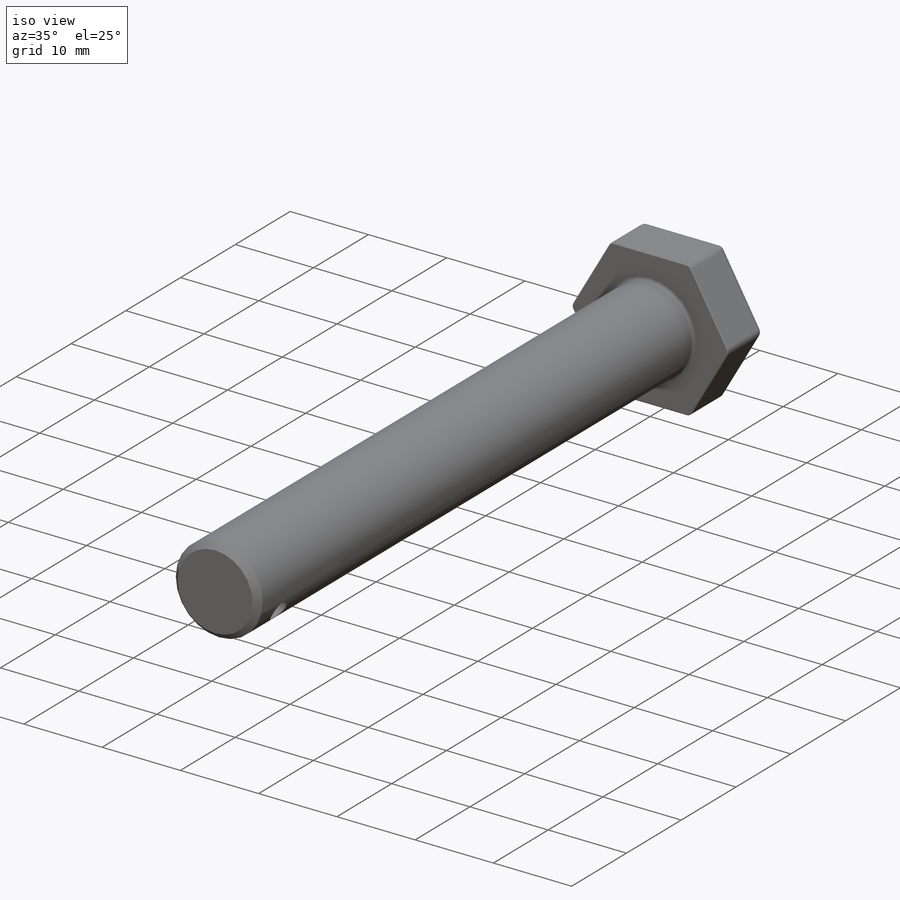
[diagram: iso view]
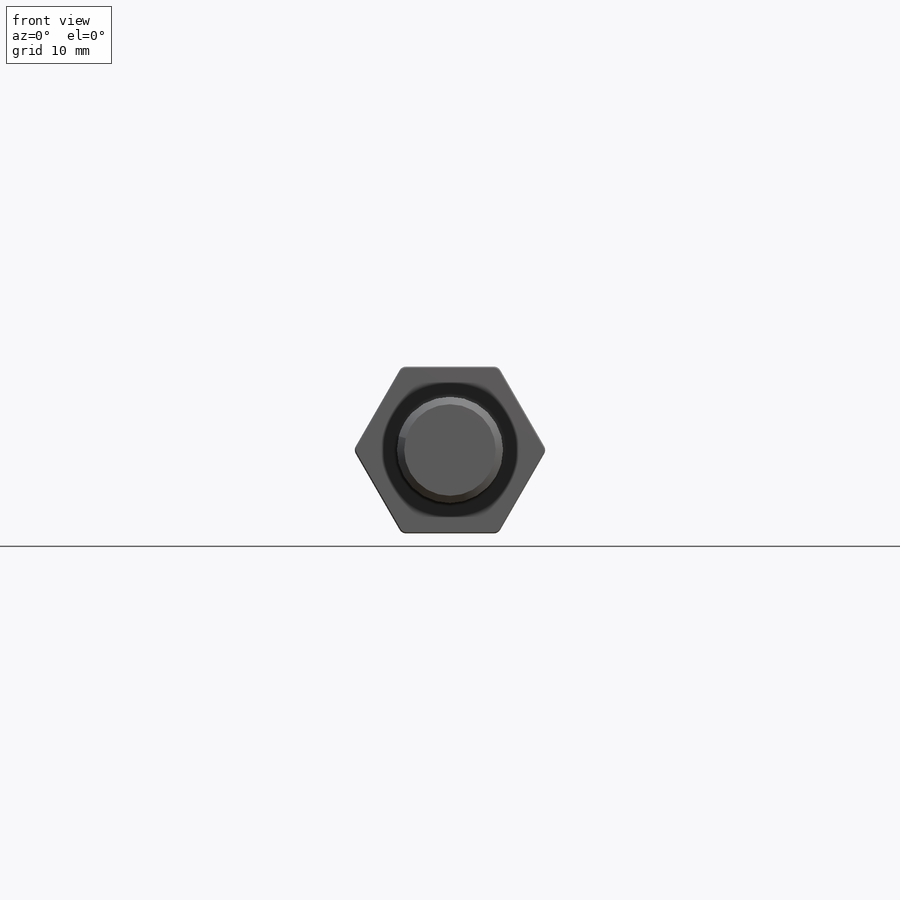
[diagram: front view]
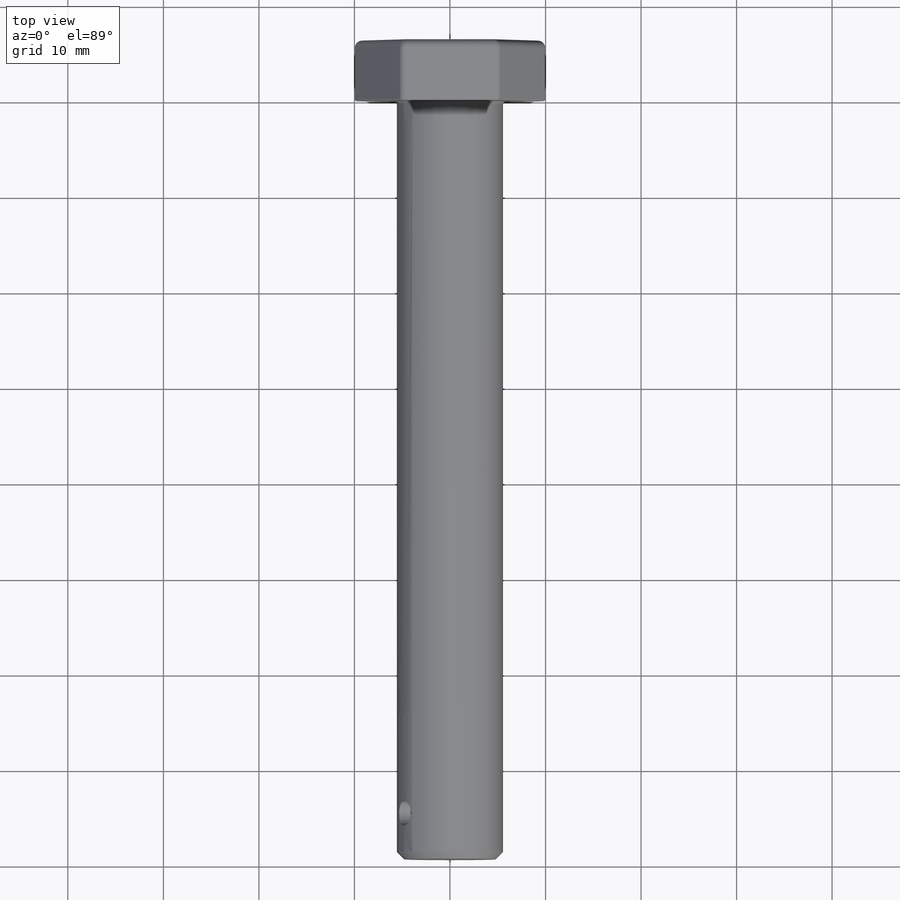
[diagram: top view]
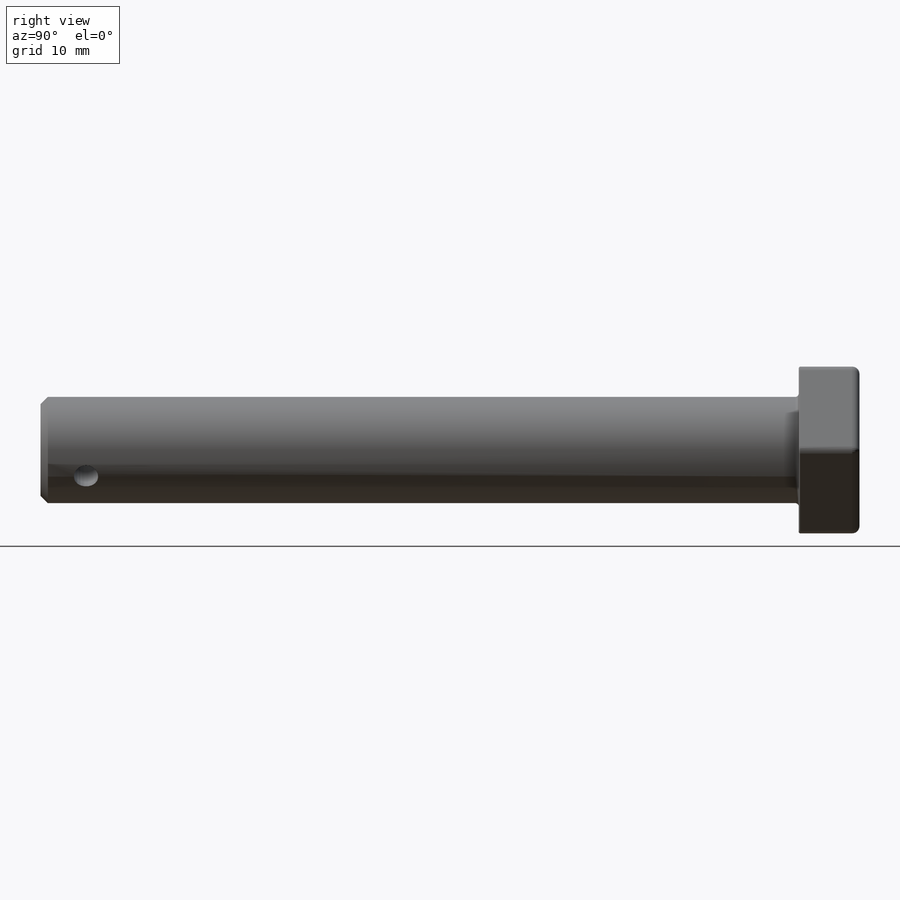
[diagram: right view]
SOLIDWORKS PART (.sldprt)
format: sldprt  version: not decoded by parser v0  size: 14,612,992 bytes
history: native  units: mm
features: sketch x4, plane x3, fillet x3, extrude x2, chamfer x2, material x1, thread x1, cut_extrude x1, hole x1 + 1 further entry (+8 scaffold rows collapsed)
feature tree (27):
  scaffold x8  (default folders/planes/origin — collapsed)
  material  "AISI 4340 Steel, normalized"
  plane  "Plane1"
  plane  "Plane2"
  plane  "Plane3"
  "Design Table"
  sketch  "Shank_Diameter"  dims[Diameter=11.1125mm]
  extrude  "Shank"  [1 undecoded]
  thread  "Thread"  Diameter=14.2875mm Length=14.2875mm Minor=9.5758mm  [1 undecoded]
  sketch  "Hex"  dims[c1.D1=0.762mm c1.D2=0.762mm c1.D3=0.762mm c1.D4=0.762mm c1.D5=0.762mm c2.D1=0.762mm c2.D2=11.1125mm c2.D3=11.1125mm c3.D2=11.1125mm c3.D3=11.1125mm c4.D2=60.0deg c4.D3=60.0deg c4.D4=~22.258794mm c4.D1=22.225mm c5.D2=120.0deg c5.D4=~22.219941mm c6.D2=~22.217016mm c6.D1=17.4625mm c6.Wrench_Size=17.4625mm c6.D4=~8.73125mm c6.D5=~8.73125mm c6.D6=~8.73125mm c6.D7=120.0deg c6.D8=120.0deg c6.D9=120.0deg c6.D10=120.0deg c6.D11=120.0deg c6.D12=~13.748153mm c6.D13=60.0deg]
  extrude  "Head"  Depth=6.35mm Thickness=6.35mm
  sketch  "Sketch1"  dims[D1=1.524mm D2=4.7625mm]
  cut_extrude  "Shank_Hole"  [1 undecoded]
  sketch  "Sketch2"  dims[D1=1.524mm]
  hole  "Head_Hole"  [1 undecoded]
  fillet  "Fillet1"  Radius=0.762mm
  fillet  "Fillet2"  Radius=0.762mm
  chamfer  "Chamfer1"  Distance=0.762mm Angle=45deg
  chamfer  "Chamfer2"  Distance=0.127mm Angle=45deg
  fillet  "Fillet4"  Radius=0.381mm
decode coverage: 11 of 14 modeling features carry decoded parameters; 1 rows unclassified (native names shown)
note: ~ marks probable driven/reference dimensions
note: 4 parameter values undecoded
summary: no parameter record found for 3 features
note: suppression state not decoded; provenance and decode notes live in map.json
